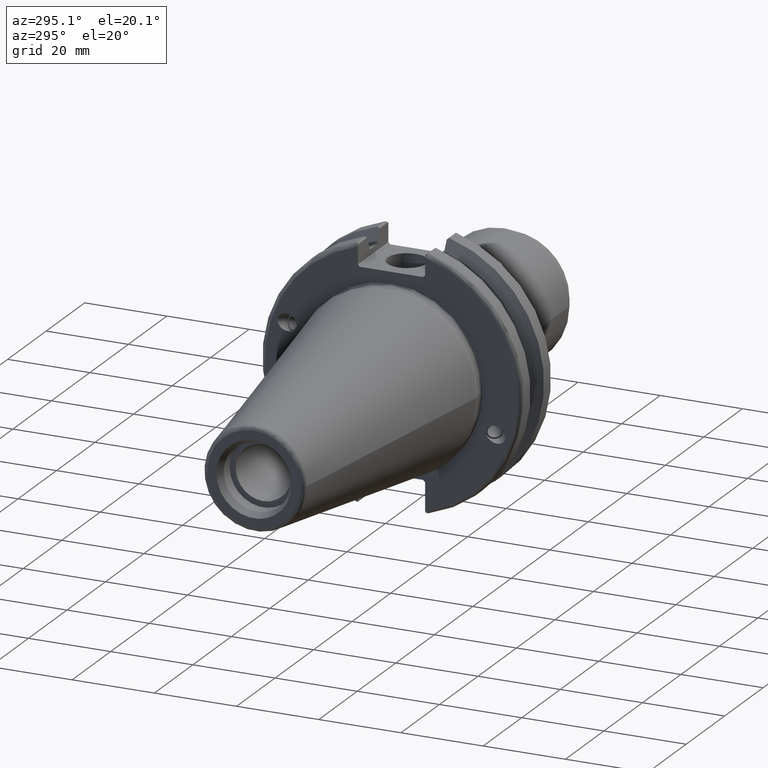
[diagram: clean part render]
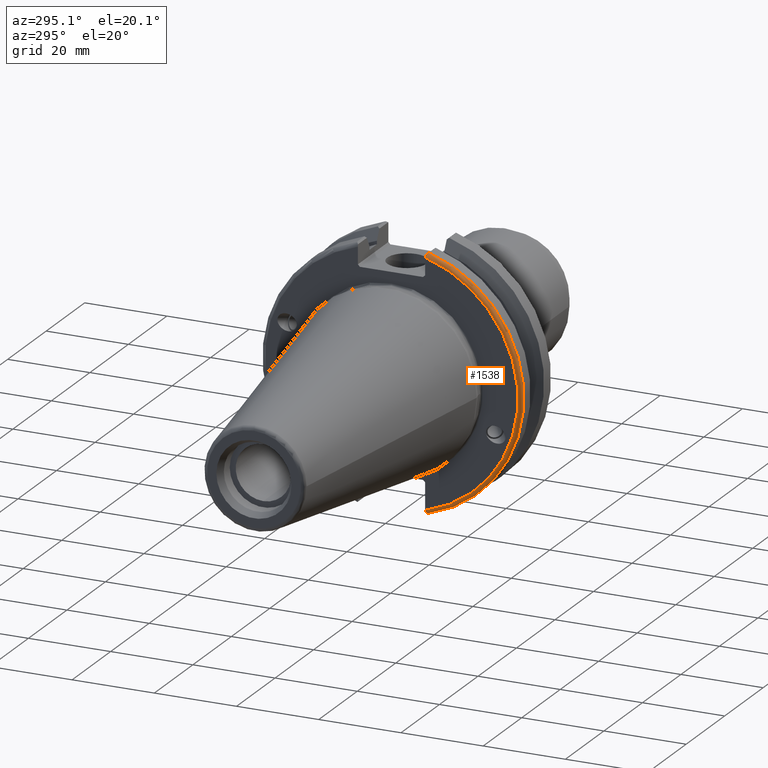
[diagram: same view with one face highlighted and labeled with its STEP entity id]
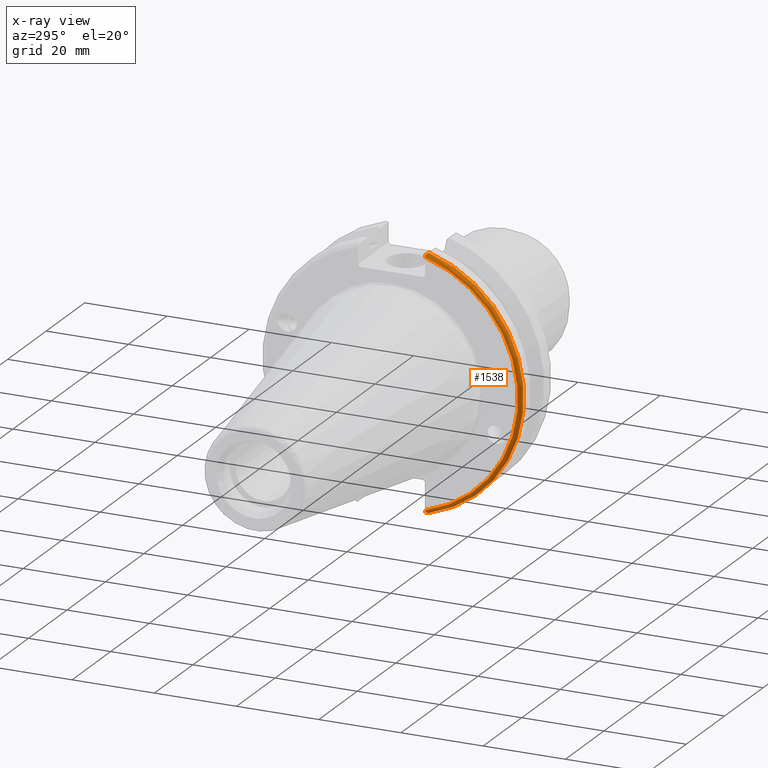
[diagram: x-ray of the same camera — body ghosted, the highlighted face saturated]
A machine part, auxiliary view. The second image highlights one B-rep face of the part: STEP entity #1538.
The next image is the same camera in x-ray: the body ghosted, the highlighted face saturated — about 0% of this face is hidden behind the body in this view.
In plain terms, the highlighted toroidal blend (fillet) surface has major radius 30.75 mm and minor (blend) radius 1 mm.
Its self-contained STEP definition (entity closure, byte-faithful):
#89=B_SPLINE_CURVE_WITH_KNOTS('',3,(#2899,#2900,#2901,#2902,#2903,#2904),
 .UNSPECIFIED.,.F.,.F.,(4,2,4),(0.0977210450333167,0.111963554372601,0.150804064902975),
 .UNSPECIFIED.);
#90=B_SPLINE_CURVE_WITH_KNOTS('',3,(#2925,#2926,#2927,#2928,#2929,#2930),
 .UNSPECIFIED.,.F.,.F.,(4,2,4),(0.452741154494498,0.491581665024872,0.505824174364157),
 .UNSPECIFIED.);
#91=B_SPLINE_CURVE_WITH_KNOTS('',3,(#2934,#2935,#2936,#2937,#2938,#2939,
#2940,#2941),.UNSPECIFIED.,.F.,.F.,(4,2,2,4),(-0.104180282751877,-0.0729784742461442,
-0.0343524753874977,0.),.UNSPECIFIED.);
#92=B_SPLINE_CURVE_WITH_KNOTS('',3,(#2944,#2945,#2946,#2947,#2948,#2949,
#2950,#2951),.UNSPECIFIED.,.F.,.F.,(4,2,2,4),(0.,0.0343524753874981,0.0729784742461436,
0.104180282751876),.UNSPECIFIED.);
#406=FACE_OUTER_BOUND('',#504,.T.);
#504=EDGE_LOOP('',(#1313,#1314,#1315,#1316,#1317,#1318));
#594=CIRCLE('',#1707,30.75);
#599=CIRCLE('',#1720,31.75);
#722=VERTEX_POINT('',#2779);
#723=VERTEX_POINT('',#2780);
#746=VERTEX_POINT('',#2898);
#752=VERTEX_POINT('',#2923);
#753=VERTEX_POINT('',#2933);
#754=VERTEX_POINT('',#2942);
#914=EDGE_CURVE('',#722,#723,#594,.T.);
#946=EDGE_CURVE('',#746,#722,#89,.T.);
#956=EDGE_CURVE('',#723,#752,#90,.T.);
#958=EDGE_CURVE('',#752,#753,#91,.T.);
#959=EDGE_CURVE('',#753,#754,#599,.T.);
#960=EDGE_CURVE('',#754,#746,#92,.T.);
#1313=ORIENTED_EDGE('',*,*,#958,.T.);
#1314=ORIENTED_EDGE('',*,*,#959,.T.);
#1315=ORIENTED_EDGE('',*,*,#960,.T.);
#1316=ORIENTED_EDGE('',*,*,#946,.T.);
#1317=ORIENTED_EDGE('',*,*,#914,.T.);
#1318=ORIENTED_EDGE('',*,*,#956,.T.);
#1487=TOROIDAL_SURFACE('',#1719,30.75,1.);
#1538=ADVANCED_FACE('',(#406),#1487,.T.);
#1707=AXIS2_PLACEMENT_3D('',#2781,#2041,#2042);
#1719=AXIS2_PLACEMENT_3D('',#2932,#2089,#2090);
#1720=AXIS2_PLACEMENT_3D('',#2943,#2091,#2092);
#2041=DIRECTION('center_axis',(1.,0.,0.));
#2042=DIRECTION('ref_axis',(0.,-1.,1.60812264967664E-16));
#2089=DIRECTION('center_axis',(1.,0.,0.));
#2090=DIRECTION('ref_axis',(0.,0.,-1.));
#2091=DIRECTION('center_axis',(-1.,0.,0.));
#2092=DIRECTION('ref_axis',(0.,-1.,1.60812264967664E-16));
#2779=CARTESIAN_POINT('',(3.175,-8.18999999999999,29.6392712461019));
#2780=CARTESIAN_POINT('',(3.175,-8.19,-29.6392712461019));
#2781=CARTESIAN_POINT('Origin',(3.175,0.,0.));
#2898=CARTESIAN_POINT('',(3.31912772509028,-8.19,30.1755016258903));
#2899=CARTESIAN_POINT('Ctrl Pts',(3.31912772509028,-8.19,30.1755016258903));
#2900=CARTESIAN_POINT('Ctrl Pts',(3.29318362718666,-8.19,30.131014531546));
#2901=CARTESIAN_POINT('Ctrl Pts',(3.27103565282437,-8.19,30.0852355256475));
#2902=CARTESIAN_POINT('Ctrl Pts',(3.20451443291695,-8.19,29.9212724384851));
#2903=CARTESIAN_POINT('Ctrl Pts',(3.175,-8.19,29.7687396145364));
#2904=CARTESIAN_POINT('Ctrl Pts',(3.175,-8.19,29.6392712461019));
#2923=CARTESIAN_POINT('',(3.31912772509028,-8.19,-30.1755016258903));
#2925=CARTESIAN_POINT('Ctrl Pts',(3.175,-8.19,-29.6392712461018));
#2926=CARTESIAN_POINT('Ctrl Pts',(3.175,-8.19,-29.7687396145364));
#2927=CARTESIAN_POINT('Ctrl Pts',(3.20451443291695,-8.19,-29.9212724384851));
#2928=CARTESIAN_POINT('Ctrl Pts',(3.27103565282437,-8.19,-30.0852355256475));
#2929=CARTESIAN_POINT('Ctrl Pts',(3.29318362718666,-8.19,-30.131014531546));
#2930=CARTESIAN_POINT('Ctrl Pts',(3.31912772509028,-8.19,-30.1755016258903));
#2932=CARTESIAN_POINT('Origin',(4.175,0.,0.));
#2933=CARTESIAN_POINT('',(4.175,-8.67204822802685,-30.5427254764662));
#2934=CARTESIAN_POINT('Ctrl Pts',(3.31912772509028,-8.19,-30.1755016258903));
#2935=CARTESIAN_POINT('Ctrl Pts',(3.36755369570113,-8.27036828330781,-30.2367261024977));
#2936=CARTESIAN_POINT('Ctrl Pts',(3.43232973376814,-8.34909446036477,-30.2966996242308));
#2937=CARTESIAN_POINT('Ctrl Pts',(3.58532758094931,-8.48862804755884,-30.4029961692546));
#2938=CARTESIAN_POINT('Ctrl Pts',(3.70655857052286,-8.56482138642532,-30.4610401774263));
#2939=CARTESIAN_POINT('Ctrl Pts',(3.92668295662254,-8.6471881193939,-30.5237870709558));
#2940=CARTESIAN_POINT('Ctrl Pts',(4.06049174870834,-8.67204822802686,-30.5427254764662));
#2941=CARTESIAN_POINT('Ctrl Pts',(4.175,-8.67204822802686,-30.5427254764662));
#2942=CARTESIAN_POINT('',(4.175,-8.67204822802685,30.5427254764662));
#2943=CARTESIAN_POINT('Origin',(4.175,0.,0.));
#2944=CARTESIAN_POINT('Ctrl Pts',(4.175,-8.67204822802686,30.5427254764662));
#2945=CARTESIAN_POINT('Ctrl Pts',(4.06049174870834,-8.67204822802686,30.5427254764662));
#2946=CARTESIAN_POINT('Ctrl Pts',(3.92668295662254,-8.64718811939389,30.5237870709558));
#2947=CARTESIAN_POINT('Ctrl Pts',(3.70655857052286,-8.56482138642532,30.4610401774263));
#2948=CARTESIAN_POINT('Ctrl Pts',(3.58532758094931,-8.48862804755884,30.4029961692546));
#2949=CARTESIAN_POINT('Ctrl Pts',(3.43232973376814,-8.34909446036478,30.2966996242308));
#2950=CARTESIAN_POINT('Ctrl Pts',(3.36755369570113,-8.2703682833078,30.2367261024977));
#2951=CARTESIAN_POINT('Ctrl Pts',(3.31912772509028,-8.19,30.1755016258903));